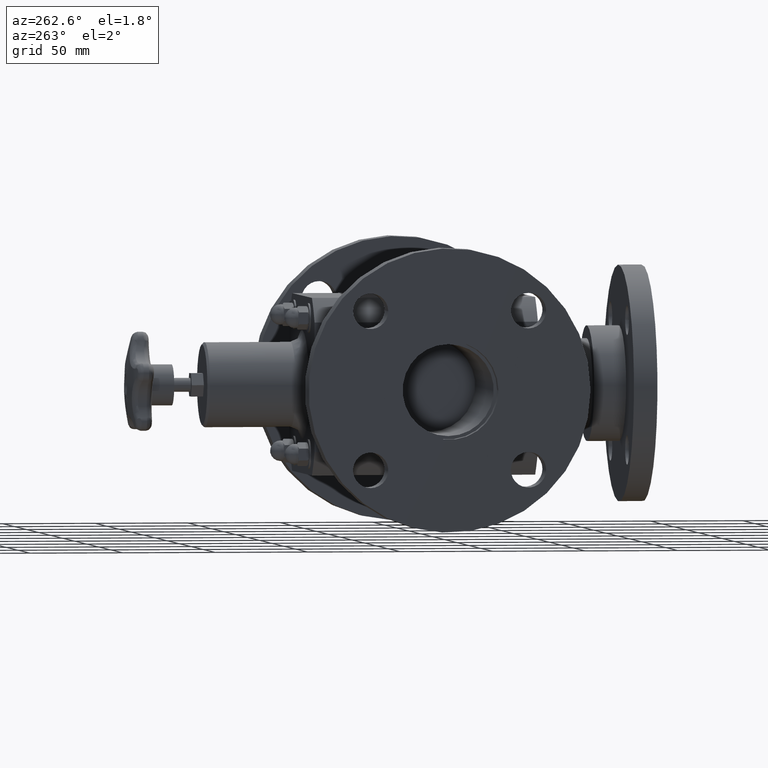
[diagram: clean part render]
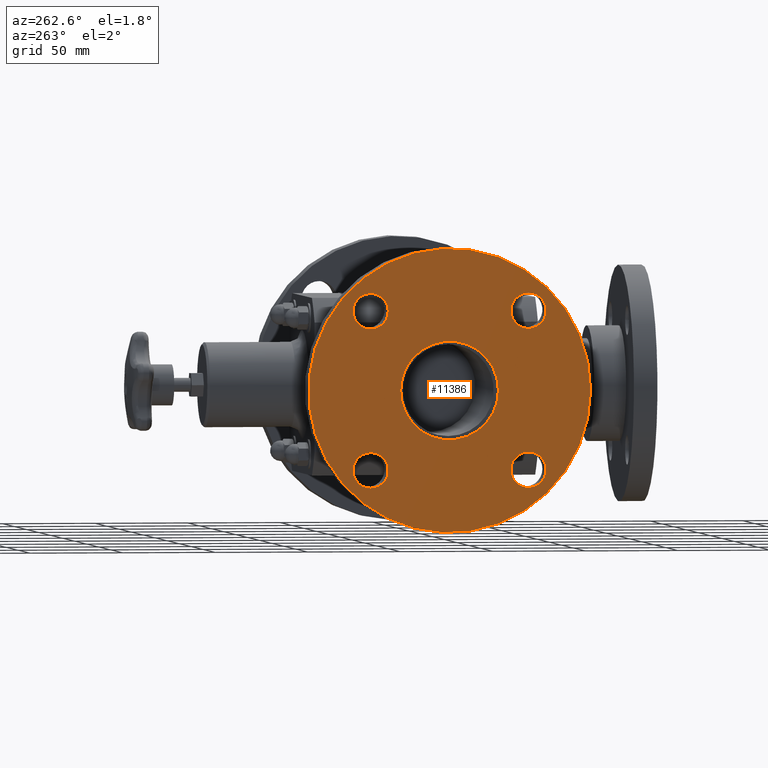
[diagram: same view with one face highlighted and labeled with its STEP entity id]
A machine part, auxiliary view. The second image highlights one B-rep face of the part: STEP entity #11386.
In plain terms, the highlighted planar face has unit normal (-1, 0, 0).
Its self-contained STEP definition (entity closure, byte-faithful):
#11239=CARTESIAN_POINT('',(-4.515000000000003,0.518621394681948,1.304378605318050));
#11240=VERTEX_POINT('',#11239);
#11241=CARTESIAN_POINT('',(-4.515000000000003,0.518621394681949,1.679378605318050));
#11242=DIRECTION('',(1.0,0.0,0.0));
#11243=DIRECTION('',(0.0,0.0,1.0));
#11244=AXIS2_PLACEMENT_3D('',#11241,#11242,#11243);
#11245=CIRCLE('',#11244,0.375000000000000);
#11246=EDGE_CURVE('',#11240,#11240,#11245,.T.);
#11267=CARTESIAN_POINT('',(-4.515000000000003,3.502378605318049,1.679378605318048));
#11268=VERTEX_POINT('',#11267);
#11269=CARTESIAN_POINT('',(-4.515000000000003,3.877378605318049,1.679378605318048));
#11270=DIRECTION('',(1.0,0.0,0.0));
#11271=DIRECTION('',(0.0,1.0,0.0));
#11272=AXIS2_PLACEMENT_3D('',#11269,#11270,#11271);
#11273=CIRCLE('',#11272,0.375000000000000);
#11274=EDGE_CURVE('',#11268,#11268,#11273,.T.);
#11295=CARTESIAN_POINT('',(-4.515000000000004,3.877378605318048,-1.304378605318053));
#11296=VERTEX_POINT('',#11295);
#11297=CARTESIAN_POINT('',(-4.515000000000004,3.877378605318048,-1.679378605318052));
#11298=DIRECTION('',(1.0,0.0,0.0));
#11299=DIRECTION('',(0.0,0.0,-1.0));
#11300=AXIS2_PLACEMENT_3D('',#11297,#11298,#11299);
#11301=CIRCLE('',#11300,0.375000000000000);
#11302=EDGE_CURVE('',#11296,#11296,#11301,.T.);
#11323=CARTESIAN_POINT('',(-4.515000000000004,0.893621394681947,-1.679378605318051));
#11324=VERTEX_POINT('',#11323);
#11325=CARTESIAN_POINT('',(-4.515000000000004,0.518621394681947,-1.679378605318051));
#11326=DIRECTION('',(1.0,0.0,0.0));
#11327=DIRECTION('',(0.0,-1.0,0.0));
#11328=AXIS2_PLACEMENT_3D('',#11325,#11326,#11327);
#11329=CIRCLE('',#11328,0.375000000000000);
#11330=EDGE_CURVE('',#11324,#11324,#11329,.T.);
#11340=CARTESIAN_POINT('',(-4.515000000000003,1.157999999999998,-8.069369E-016));
#11341=VERTEX_POINT('',#11340);
#11342=CARTESIAN_POINT('',(-4.515000000000003,2.197999999999998,-1.316966E-015));
#11343=DIRECTION('',(1.0,0.0,0.0));
#11344=DIRECTION('',(0.0,-1.0,0.0));
#11345=AXIS2_PLACEMENT_3D('',#11342,#11343,#11344);
#11346=CIRCLE('',#11345,1.040000000000000);
#11347=EDGE_CURVE('',#11341,#11341,#11346,.T.);
#11355=CARTESIAN_POINT('',(-4.515000000000003,0.177999999999998,-3.263330E-016));
#11356=DIRECTION('',(-1.0,0.0,0.0));
#11357=DIRECTION('',(0.0,0.0,1.0));
#11358=AXIS2_PLACEMENT_3D('',#11355,#11356,#11357);
#11359=PLANE('',#11358);
#11360=CARTESIAN_POINT('',(-4.515000000000003,-0.802000000000002,1.542708E-016));
#11361=VERTEX_POINT('',#11360);
#11362=CARTESIAN_POINT('',(-4.515000000000004,2.197999999999998,-1.316966E-015));
#11363=DIRECTION('',(1.0,0.0,0.0));
#11364=DIRECTION('',(0.0,-1.0,0.0));
#11365=AXIS2_PLACEMENT_3D('',#11362,#11363,#11364);
#11366=CIRCLE('',#11365,3.0);
#11367=EDGE_CURVE('',#11361,#11361,#11366,.T.);
#11368=ORIENTED_EDGE('',*,*,#11367,.F.);
#11369=EDGE_LOOP('',(#11368));
#11370=FACE_OUTER_BOUND('',#11369,.T.);
#11371=ORIENTED_EDGE('',*,*,#11246,.T.);
#11372=EDGE_LOOP('',(#11371));
#11373=FACE_BOUND('',#11372,.T.);
#11374=ORIENTED_EDGE('',*,*,#11274,.T.);
#11375=EDGE_LOOP('',(#11374));
#11376=FACE_BOUND('',#11375,.T.);
#11377=ORIENTED_EDGE('',*,*,#11302,.T.);
#11378=EDGE_LOOP('',(#11377));
#11379=FACE_BOUND('',#11378,.T.);
#11380=ORIENTED_EDGE('',*,*,#11330,.T.);
#11381=EDGE_LOOP('',(#11380));
#11382=FACE_BOUND('',#11381,.T.);
#11383=ORIENTED_EDGE('',*,*,#11347,.T.);
#11384=EDGE_LOOP('',(#11383));
#11385=FACE_BOUND('',#11384,.T.);
#11386=ADVANCED_FACE('',(#11370,#11373,#11376,#11379,#11382,#11385),#11359,.T.);